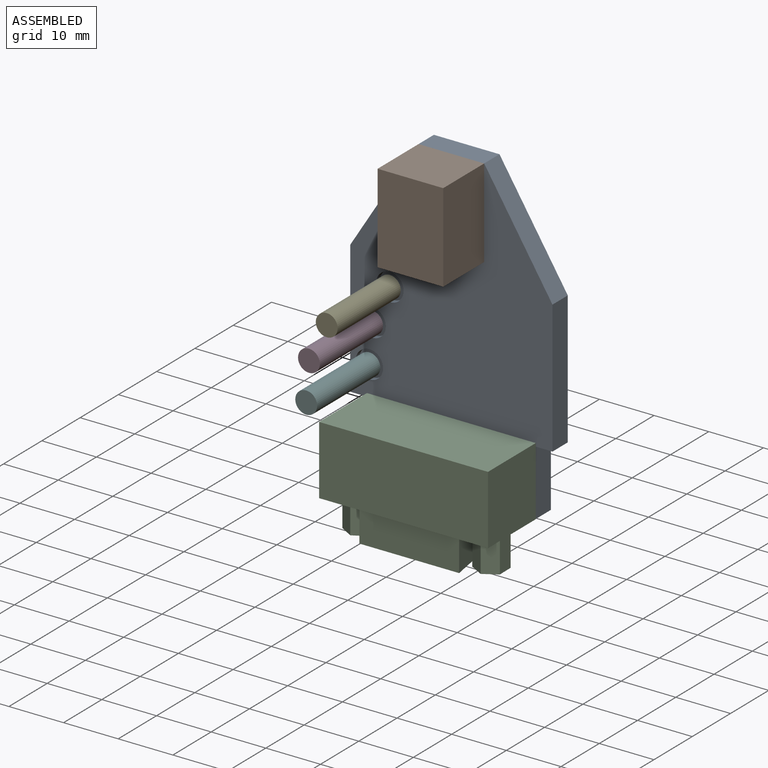
[diagram: assembled view]
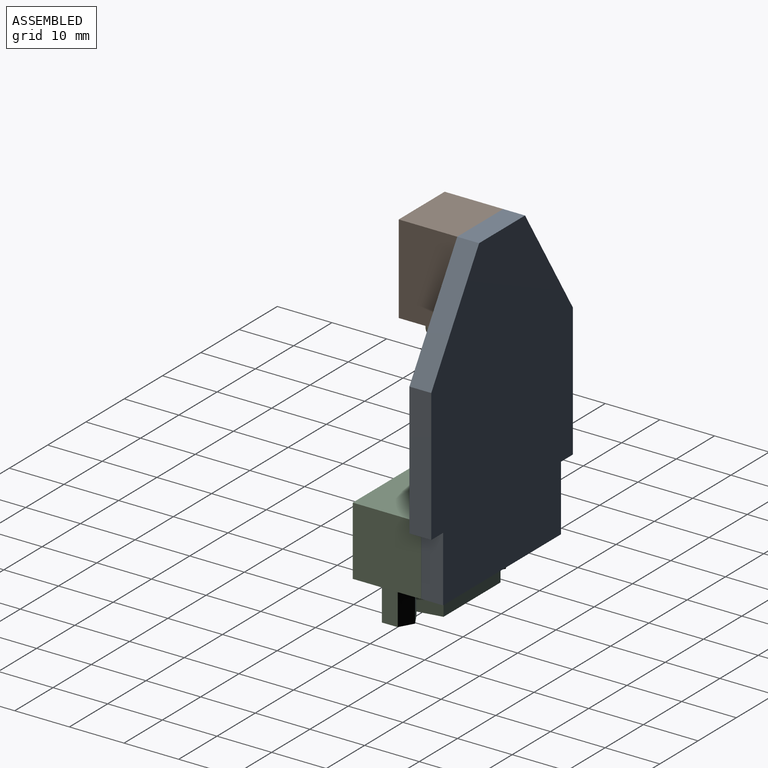
[diagram: assembled view, second angle]
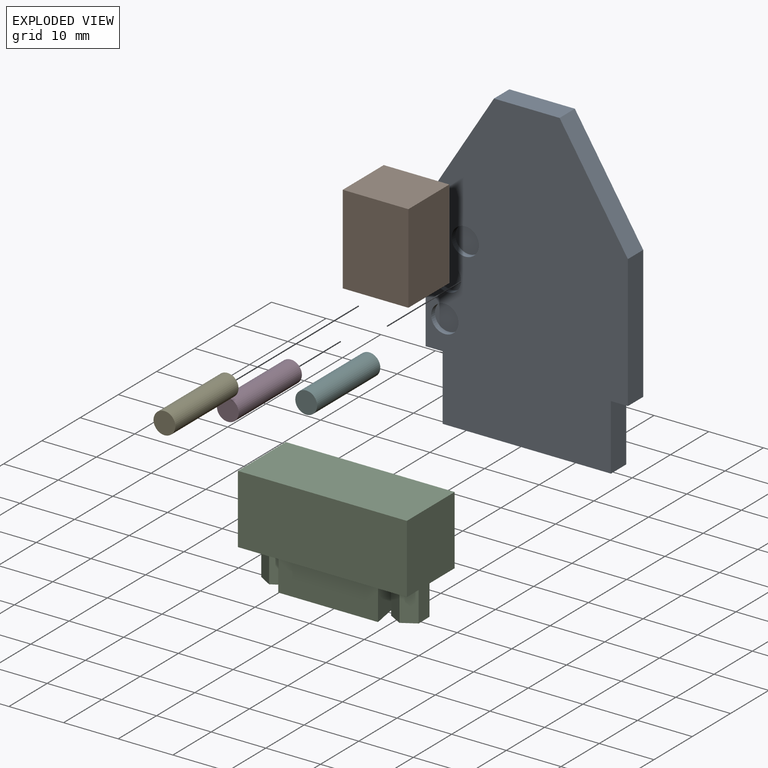
[diagram: exploded view]
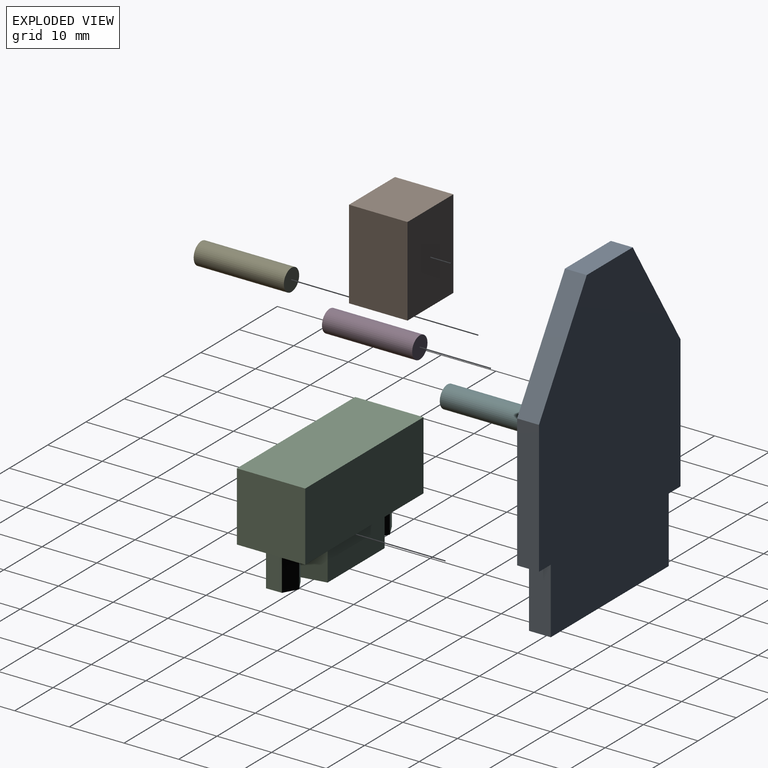
[diagram: exploded view, second angle]
ASSEMBLY  parts=6 mates=5
PART A: 18 faces, bbox 37x56.3x4 mm
  f0: plane 20x12.5mm, normal (0.85,-0.53,0), area 94.3mm2, adj f1,f9,f10,f11
  f1: plane 24.3x4mm, normal (1,0,0), area 97.2mm2, adj f0,f2,f10,f11
  f2: plane 4x3.1mm, normal (0,1,0), area 12.4mm2, adj f1,f3,f10,f11
  f3: plane 12x4mm, normal (1,0,0), area 48mm2, adj f2,f4,f10,f11
  f4: plane 30.8x4mm, normal (0,1,0), area 123.2mm2, adj f3,f5,f10,f11
  f5: plane 12x4mm, normal (-1,0,0), area 48mm2, adj f4,f6,f10,f11
  f6: plane 4x3.1mm, normal (0,1,0), area 12.4mm2, adj f5,f7,f10,f11
  f7: plane 24.3x4mm, normal (-1,0,0), area 97.2mm2, adj f6,f8,f10,f11
  f8: plane 20x12.5mm, normal (-0.85,-0.53,0), area 94.3mm2, adj f7,f9,f10,f11
  f9: plane 12x4mm, normal (0,-1,0), area 48mm2, adj f0,f8,f10,f11
  f10: plane 56.3x37mm, normal (0,0,1), area 1699.8mm2, adj f0,f1,f2,f3,f4,f5,f6,f7
  f11: plane 56.3x37mm, normal (0,0,-1), area 1758.7mm2, adj f0,f1,f2,f3,f4,f5,f6,f7
  f12: cylinder r=2.5mm len=5mm, axis (0,0,1), area 15.7mm2, adj f10,f13
  f13: plane 5x5mm, normal (0,0,1), area 19.6mm2, adj f12
  f14: cylinder r=2.5mm len=5mm, axis (0,0,1), area 15.7mm2, adj f10,f15
  f15: plane 5x5mm, normal (0,0,1), area 19.6mm2, adj f14
  f16: cylinder r=2.5mm len=5mm, axis (0,0,1), area 15.7mm2, adj f10,f17
  f17: plane 5x5mm, normal (0,0,1), area 19.6mm2, adj f16
PART B: 6 faces, bbox 12x16.3x10.7 mm
  f0: plane 12x10.7mm, normal (0,1,0), area 128.4mm2, adj f1,f3,f4,f5
  f1: plane 16.3x10.7mm, normal (-1,0,0), area 174.4mm2, adj f0,f2,f4,f5
  f2: plane 12x10.7mm, normal (0,-1,0), area 128.4mm2, adj f1,f3,f4,f5
  f3: plane 16.3x10.7mm, normal (1,0,0), area 174.4mm2, adj f0,f2,f4,f5
  f4: plane 16.3x12mm, normal (0,0,1), area 195.6mm2, adj f0,f1,f2,f3
  f5: plane 16.3x12mm, normal (0,0,-1), area 195.6mm2, adj f0,f1,f2,f3
PART C: 25 faces, bbox 30.9x19x12.5 mm
  f0: plane 30.9x12.5mm, normal (0,-1,0), area 185.5mm2, adj f2,f3,f4,f5,f6,f7,f8,f9
  f1: plane 30.9x12.5mm, normal (0,1,0), area 386.3mm2, adj f2,f3,f4,f5
  f2: plane 12.6x12.5mm, normal (-1,0,0), area 157.5mm2, adj f0,f1,f4,f5
  f3: plane 12.6x12.5mm, normal (1,0,0), area 157.5mm2, adj f0,f1,f4,f5
  f4: plane 30.9x12.6mm, normal (0,0,1), area 389.3mm2, adj f0,f1,f2,f3
  f5: plane 30.9x12.6mm, normal (0,0,-1), area 389.3mm2, adj f0,f1,f2,f3
  f6: plane 14.9x6.4mm, normal (0,0,-1), area 95.4mm2, adj f0,f7,f9,f10
  f7: plane 9.5x6.4mm, normal (0.98,0,-0.17), area 61.7mm2, adj f0,f6,f8,f10
  f8: plane 18.25x6.4mm, normal (0,0,1), area 116.8mm2, adj f0,f7,f9,f10
  f9: plane 9.5x6.4mm, normal (-0.98,0,-0.17), area 61.7mm2, adj f0,f6,f8,f10
  f10: plane 18.25x9.5mm, normal (0,-1,0), area 157.5mm2, adj f6,f7,f8,f9
  f11: plane 6.4x2.52mm, normal (0.49,0,0.87), area 18.5mm2, adj f0,f12,f16,f17
  f12: plane 6.4x2.48mm, normal (-0.51,0,0.86), area 18.5mm2, adj f0,f11,f13,f17
  f13: plane 6.4x2.89mm, normal (-1,0,-0.01), area 18.5mm2, adj f0,f12,f14,f17
  f14: plane 6.4x2.52mm, normal (-0.49,0,-0.87), area 18.5mm2, adj f0,f13,f15,f17
  f15: plane 6.4x2.48mm, normal (0.51,0,-0.86), area 18.5mm2, adj f0,f14,f16,f17
  f16: plane 6.4x2.89mm, normal (1,0,0.01), area 18.5mm2, adj f0,f11,f15,f17
  f17: plane 5.77x5.04mm, normal (0,-1,0), area 21.7mm2, adj f11,f12,f13,f14,f15,f16
  f18: plane 6.4x2.52mm, normal (-0.49,0,0.87), area 18.5mm2, adj f0,f19,f23,f24
  f19: plane 6.4x2.89mm, normal (-1,0,0.01), area 18.5mm2, adj f0,f18,f20,f24
  f20: plane 6.4x2.48mm, normal (-0.51,0,-0.86), area 18.5mm2, adj f0,f19,f21,f24
  f21: plane 6.4x2.52mm, normal (0.49,0,-0.87), area 18.5mm2, adj f0,f20,f22,f24
  f22: plane 6.4x2.89mm, normal (1,0,-0.01), area 18.5mm2, adj f0,f21,f23,f24
  f23: plane 6.4x2.48mm, normal (0.51,0,0.86), area 18.5mm2, adj f0,f18,f22,f24
  f24: plane 5.77x5.04mm, normal (0,-1,0), area 21.7mm2, adj f18,f19,f20,f21,f22,f23
PART D: 3 faces, bbox 4x4x16.5 mm
  f0: cylinder r=2mm len=16.5mm, axis (0,0,-1), area 207.3mm2, adj f1,f2
  f1: plane 4x4mm, normal (0,0,1), area 12.6mm2, adj f0
  f2: plane 4x4mm, normal (0,0,-1), area 12.6mm2, adj f0
PART E: same geometry as D
PART F: same geometry as D
PLACE A rot(axis=(0,0.71,-0.71),180deg) t=(28.92,-9.55,-5.22)mm
PLACE B rot(axis=(0,0.71,0.71),180deg) t=(16.42,-24.25,39.08)mm
PLACE C rot(axis=(1,0,0),90deg) t=(-5.03,-13.55,-4.62)mm
PLACE D rot(axis=(0,0.71,0.71),180deg) t=(-4.08,-30.05,7.28)mm
PLACE E rot(axis=(-1,0,0),90deg) t=(-0.83,-30.05,14.03)mm
PLACE F rot(axis=(-1,0,0),90deg) t=(-4.58,-30.05,0.23)mm
MATE fastened B.f4 <-> A.f10  axis (0,1,0) through (4.42,-13.55,39.08)mm
MATE fastened F.f0 <-> A.f16  axis (0,1,0) through (-4.58,-13.55,0.23)mm
MATE fastened D.f0 <-> A.f14  axis (0,-1,0) through (-4.08,-13.55,7.28)mm
MATE fastened C.f5 <-> A.f10  axis (0,1,0) through (10.42,-13.55,-17.22)mm
MATE fastened E.f0 <-> A.f12  axis (0,-1,0) through (-0.83,-13.55,14.03)mm
